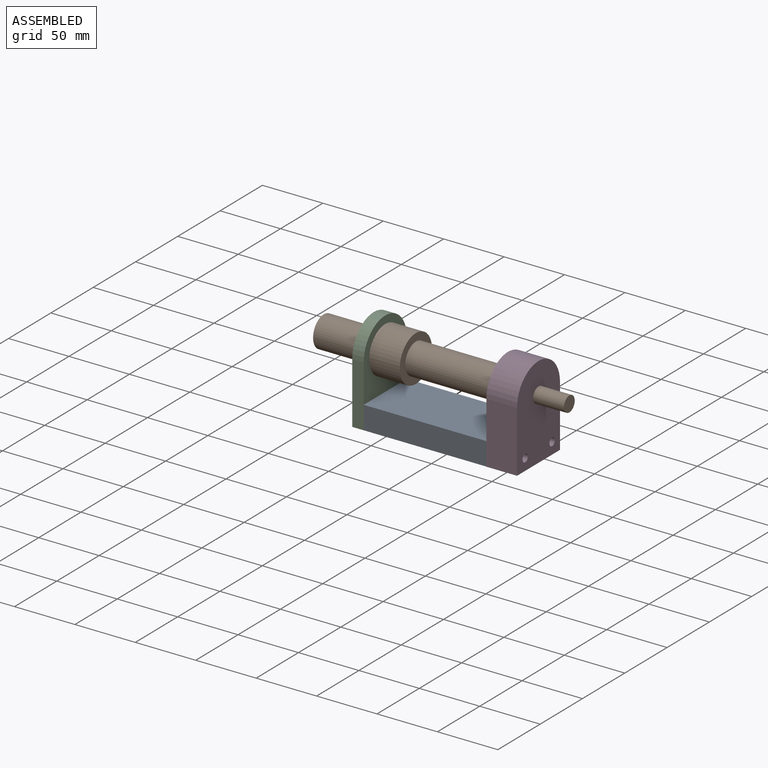
[diagram: assembled view]
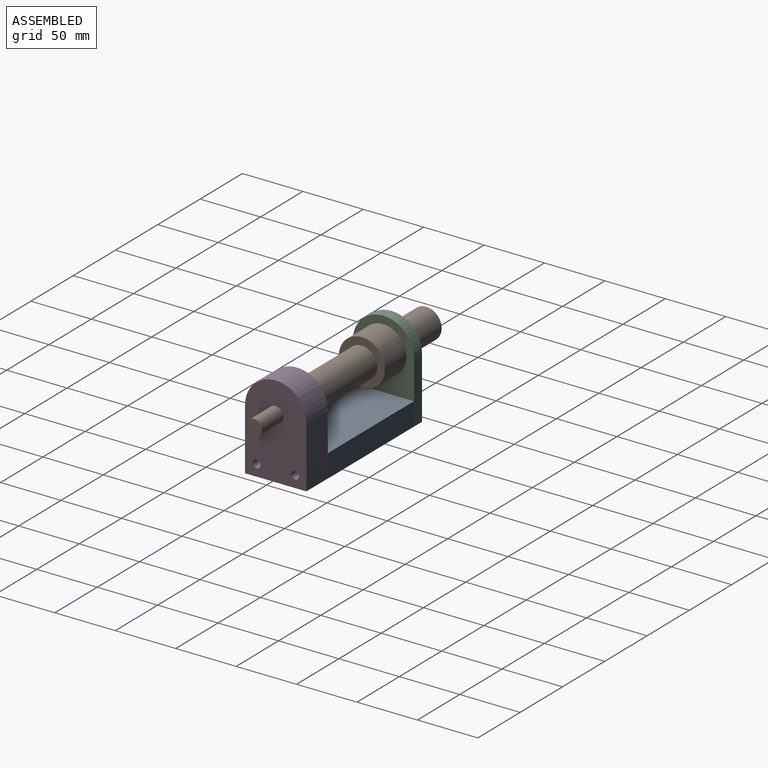
[diagram: assembled view, second angle]
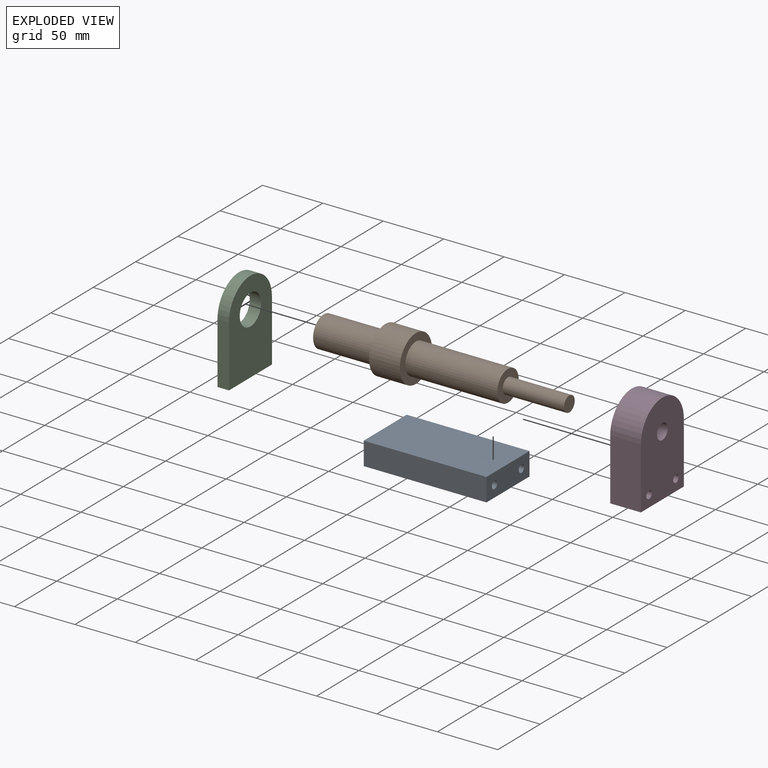
[diagram: exploded view]
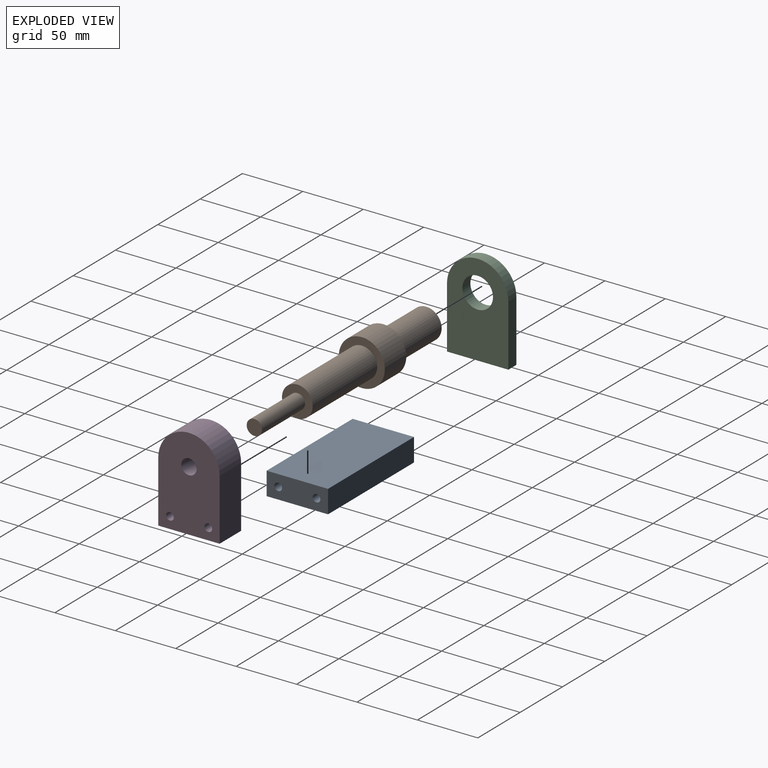
[diagram: exploded view, second angle]
ASSEMBLY  parts=4 mates=3
PART A: 10 faces, bbox 101.6x50.8x19.1 mm
  f0: plane 101.6x19.05mm, normal (0,1,0), area 1935.5mm2, adj f1,f3,f4,f5
  f1: plane 50.8x19.05mm, normal (-1,0,0), area 967.7mm2, adj f0,f2,f4,f5
  f2: plane 101.6x19.05mm, normal (0,-1,0), area 1935.5mm2, adj f1,f3,f4,f5
  f3: plane 50.8x19.05mm, normal (1,0,0), area 904.4mm2, adj f0,f2,f4,f5,f6,f8
  f4: plane 101.6x50.8mm, normal (0,0,1), area 5161.3mm2, adj f0,f1,f2,f3
  f5: plane 101.6x50.8mm, normal (0,0,-1), area 5161.3mm2, adj f0,f1,f2,f3
  f6: cylinder r=3.17mm len=19.05mm, axis (1,0,0), area 380mm2, adj f3,f7
  f7: plane 6.35x6.35mm, normal (1,0,0), area 31.7mm2, adj f6
  f8: cylinder r=3.17mm len=19.05mm, axis (1,0,0), area 380mm2, adj f3,f9
  f9: plane 6.35x6.35mm, normal (1,0,0), area 31.7mm2, adj f8
PART B: 9 faces, bbox 38.1x38.1x203.2 mm
  f0: cylinder r=19.05mm len=38.1mm, axis (0,0,-1), area 3040.2mm2, adj f2,f5
  f1: cylinder r=12.7mm len=50.8mm, axis (0,0,1), area 4053.7mm2, adj f2,f3
  f2: plane 38.1x38.1mm, normal (0,0,1), area 633.4mm2, adj f0,f1
  f3: plane 25.4x25.4mm, normal (0,0,1), area 506.7mm2, adj f1
  f4: cylinder r=12.7mm len=76.2mm, axis (0,0,-1), area 6080.5mm2, adj f5,f8
  f5: plane 38.1x38.1mm, normal (0,0,-1), area 633.4mm2, adj f0,f4
  f6: plane 12.7x12.7mm, normal (0,0,-1), area 126.7mm2, adj f7
  f7: cylinder r=6.35mm len=50.8mm, axis (0,0,-1), area 2026.8mm2, adj f6,f8
  f8: plane 25.4x25.4mm, normal (0,0,-1), area 380mm2, adj f4,f7
PART C: 7 faces, bbox 50.8x76.2x9.5 mm
  f0: plane 50.8x9.53mm, normal (-1,0,0), area 483.9mm2, adj f1,f4,f5,f6
  f1: plane 50.8x9.53mm, normal (0,-1,0), area 483.9mm2, adj f0,f2,f5,f6
  f2: plane 50.8x9.53mm, normal (1,0,0), area 483.9mm2, adj f1,f4,f5,f6
  f3: cylinder r=12.7mm len=25.4mm, axis (0,0,-1), area 760.1mm2, adj f5,f6
  f4: cylinder r=25.4mm len=50.8mm, axis (0,0,-1), area 760.1mm2, adj f0,f2,f5,f6
  f5: plane 76.2x50.8mm, normal (0,0,1), area 3087.3mm2, adj f0,f1,f2,f3,f4
  f6: plane 76.2x50.8mm, normal (0,0,-1), area 3087.3mm2, adj f0,f1,f2,f3,f4
PART D: 9 faces, bbox 50.8x76.2x25.4 mm
  f0: plane 50.8x25.4mm, normal (-1,0,0), area 1290.3mm2, adj f1,f6,f7,f8
  f1: plane 50.8x25.4mm, normal (0,-1,0), area 1290.3mm2, adj f0,f2,f7,f8
  f2: plane 50.8x25.4mm, normal (1,0,0), area 1290.3mm2, adj f1,f6,f7,f8
  f3: cylinder r=3.17mm len=25.4mm, axis (0,0,-1), area 506.7mm2, adj f7,f8
  f4: cylinder r=3.17mm len=25.4mm, axis (0,0,-1), area 506.7mm2, adj f7,f8
  f5: cylinder r=6.35mm len=25.4mm, axis (0,0,-1), area 1013.4mm2, adj f7,f8
  f6: cylinder r=25.4mm len=50.8mm, axis (0,0,-1), area 2026.8mm2, adj f0,f2,f7,f8
  f7: plane 76.2x50.8mm, normal (0,0,1), area 3404mm2, adj f0,f1,f2,f3,f4,f5,f6
  f8: plane 76.2x50.8mm, normal (0,0,-1), area 3404mm2, adj f0,f1,f2,f3,f4,f5,f6
PLACE A t=(-16.58,-9.14,1.63)mm fixed
PLACE B rot(axis=(0,-1,0),90deg) t=(71.2,-37.48,76.92)mm
PLACE C rot(axis=(0.58,0.58,0.58),120deg) t=(-90.72,-11.78,17.3)mm
PLACE D rot(axis=(0.58,-0.58,-0.58),120deg) t=(45.8,-0.88,34.15)mm
MATE fastened D.f4 <-> A.f8  axis (-1,0,0) through (20.4,-25.99,11.16)mm
MATE fastened C.f5 <-> A.f1  axis (1,0,0) through (-81.2,-10.11,1.63)mm
MATE fastened B.f0 <-> C.f3  axis (-1,0,0) through (-81.2,-10.11,52.43)mm
